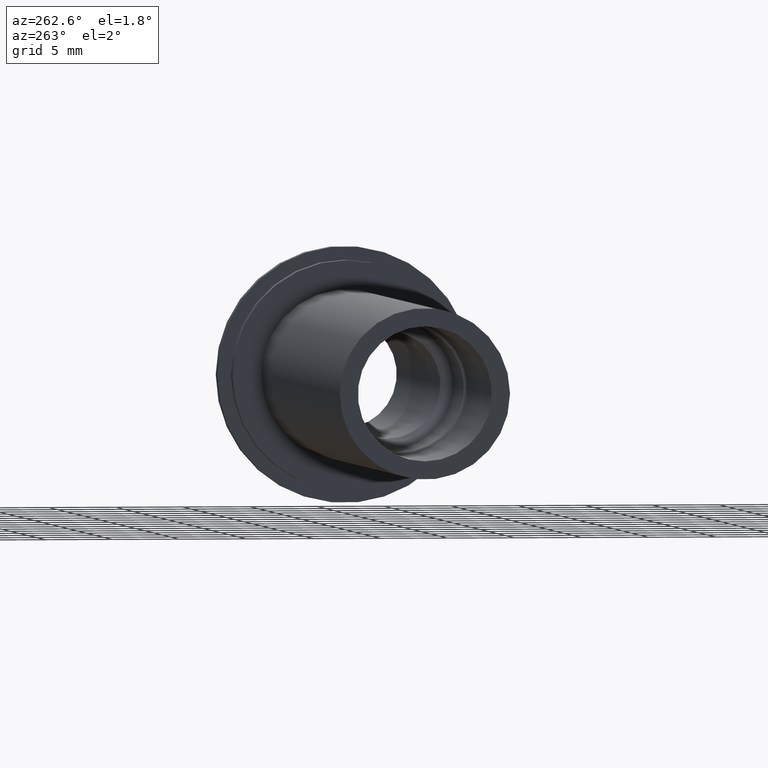
[diagram: clean part render]
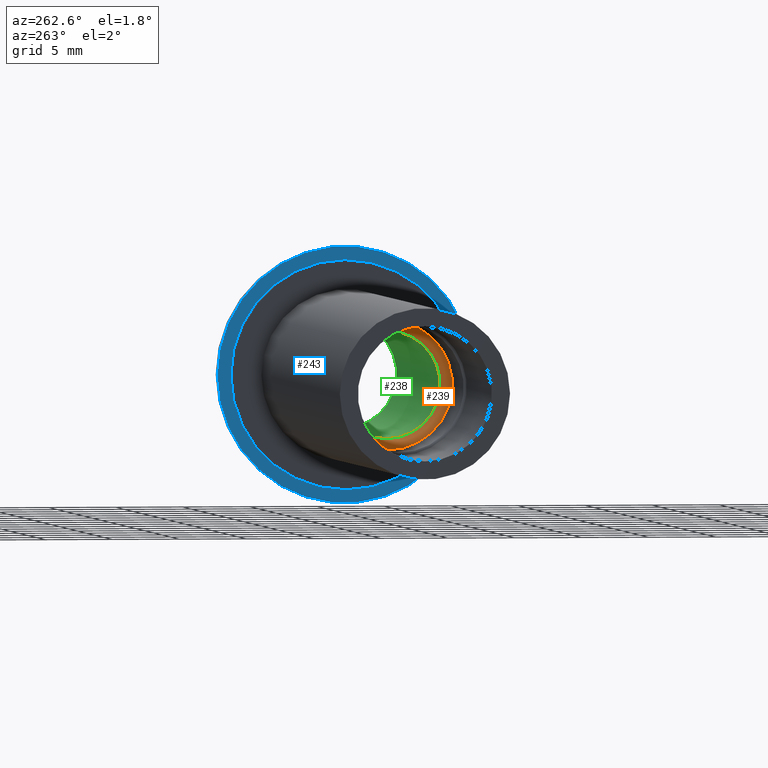
[diagram: same view with three faces highlighted in distinct colors, each labeled with its STEP entity id]
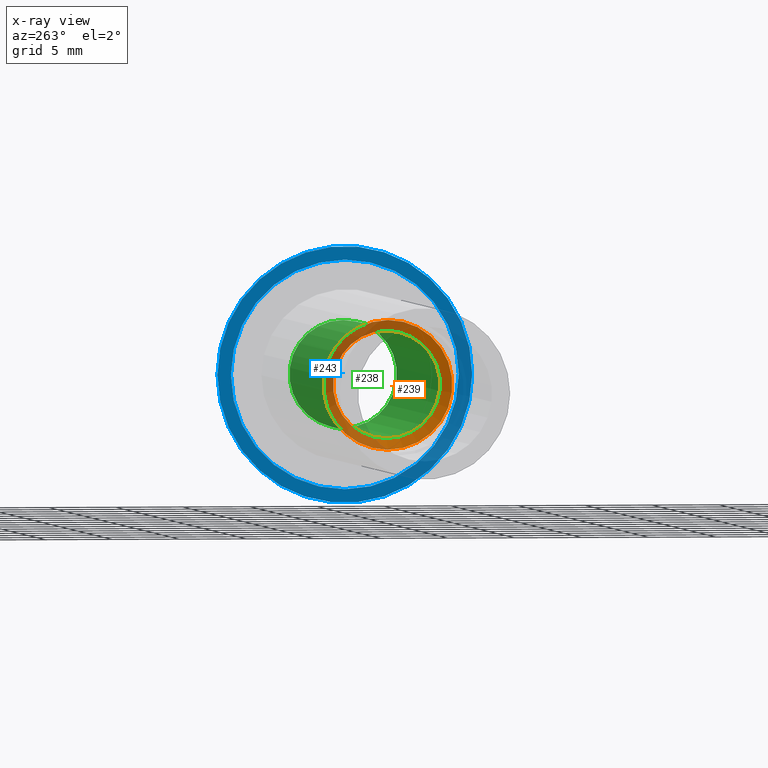
[diagram: x-ray of the same camera — body ghosted, the three highlighted faces saturated]
A machine part, auxiliary view with three faces highlighted in distinct colors.
The next image is the same camera in x-ray (body ghosted, the three faces saturated) — at least one of them is partly hidden behind the body in this view.
Their STEP definitions:

[orange] entity #239 — the highlighted conical surface has half-angle 45 deg.
#94=CONICAL_SURFACE('',#277,2.4,0.785398163397448);
#97=FACE_OUTER_BOUND('',#109,.T.);
#109=EDGE_LOOP('',(#195,#196,#197,#198,#199));
#125=LINE('',#418,#133);
#133=VECTOR('',#329,2.4);
#141=CIRCLE('',#275,4.);
#142=CIRCLE('',#276,4.);
#143=CIRCLE('',#278,4.8);
#157=VERTEX_POINT('',#410);
#158=VERTEX_POINT('',#412);
#159=VERTEX_POINT('',#416);
#171=EDGE_CURVE('',#158,#157,#141,.T.);
#172=EDGE_CURVE('',#157,#158,#142,.T.);
#173=EDGE_CURVE('',#159,#159,#143,.T.);
#174=EDGE_CURVE('',#159,#158,#125,.T.);
#195=ORIENTED_EDGE('',*,*,#173,.T.);
#196=ORIENTED_EDGE('',*,*,#174,.T.);
#197=ORIENTED_EDGE('',*,*,#171,.T.);
#198=ORIENTED_EDGE('',*,*,#172,.T.);
#199=ORIENTED_EDGE('',*,*,#174,.F.);
#239=ADVANCED_FACE('',(#97),#94,.F.);
#275=AXIS2_PLACEMENT_3D('',#413,#321,#322);
#276=AXIS2_PLACEMENT_3D('',#414,#323,#324);
#277=AXIS2_PLACEMENT_3D('',#415,#325,#326);
#278=AXIS2_PLACEMENT_3D('',#417,#327,#328);
#321=DIRECTION('center_axis',(1.,0.,0.));
#322=DIRECTION('ref_axis',(0.,0.,-1.));
#323=DIRECTION('center_axis',(1.,0.,0.));
#324=DIRECTION('ref_axis',(0.,0.,-1.));
#325=DIRECTION('center_axis',(-1.,0.,0.));
#326=DIRECTION('ref_axis',(0.,0.,1.));
#327=DIRECTION('center_axis',(-1.,0.,0.));
#328=DIRECTION('ref_axis',(0.,0.,1.));
#329=DIRECTION('',(0.707106781186548,8.65956056235493E-17,0.707106781186547));
#410=CARTESIAN_POINT('',(-25.,-4.89858719658941E-16,4.));
#412=CARTESIAN_POINT('',(-25.,-4.89858719658941E-16,-4.));
#413=CARTESIAN_POINT('Origin',(-25.,0.,0.));
#414=CARTESIAN_POINT('Origin',(-25.,0.,0.));
#415=CARTESIAN_POINT('Origin',(-23.4,0.,0.));
#416=CARTESIAN_POINT('',(-25.8,-5.8783046359073E-16,-4.8));
#417=CARTESIAN_POINT('Origin',(-25.8,0.,0.));
#418=CARTESIAN_POINT('',(-23.4,-2.93915231795365E-16,-2.4));

[blue] entity #243 — the highlighted planar face has unit normal (-1, 0, 0).
#86=FACE_BOUND('',#114,.T.);
#90=PLANE('',#285);
#101=FACE_OUTER_BOUND('',#113,.T.);
#113=EDGE_LOOP('',(#212));
#114=EDGE_LOOP('',(#213));
#147=CIRCLE('',#286,9.5);
#148=CIRCLE('',#287,8.5);
#163=VERTEX_POINT('',#432);
#164=VERTEX_POINT('',#434);
#181=EDGE_CURVE('',#163,#163,#147,.T.);
#182=EDGE_CURVE('',#164,#164,#148,.T.);
#212=ORIENTED_EDGE('',*,*,#181,.F.);
#213=ORIENTED_EDGE('',*,*,#182,.T.);
#243=ADVANCED_FACE('',(#101,#86),#90,.T.);
#285=AXIS2_PLACEMENT_3D('',#431,#345,#346);
#286=AXIS2_PLACEMENT_3D('',#433,#347,#348);
#287=AXIS2_PLACEMENT_3D('',#435,#349,#350);
#345=DIRECTION('center_axis',(-1.,0.,0.));
#346=DIRECTION('ref_axis',(0.,0.,1.));
#347=DIRECTION('center_axis',(1.,0.,0.));
#348=DIRECTION('ref_axis',(0.,0.,-1.));
#349=DIRECTION('center_axis',(1.,0.,0.));
#350=DIRECTION('ref_axis',(0.,0.,-1.));
#431=CARTESIAN_POINT('Origin',(-0.999999999999994,9.5,0.));
#432=CARTESIAN_POINT('',(-0.999999999999994,-9.5,-1.16341445918999E-15));
#433=CARTESIAN_POINT('Origin',(-0.999999999999994,0.,0.));
#434=CARTESIAN_POINT('',(-0.999999999999994,-8.5,-1.04094977927525E-15));
#435=CARTESIAN_POINT('Origin',(-0.999999999999994,0.,0.));

[green] entity #238 — the highlighted cylindrical surface (bore or boss wall) has radius 4 mm, axis along (1, 0, 0).
#96=FACE_OUTER_BOUND('',#108,.T.);
#108=EDGE_LOOP('',(#190,#191,#192,#193,#194));
#124=LINE('',#411,#132);
#132=VECTOR('',#320,4.);
#140=CIRCLE('',#274,4.);
#141=CIRCLE('',#275,4.);
#142=CIRCLE('',#276,4.);
#156=VERTEX_POINT('',#408);
#157=VERTEX_POINT('',#410);
#158=VERTEX_POINT('',#412);
#169=EDGE_CURVE('',#156,#156,#140,.T.);
#170=EDGE_CURVE('',#156,#157,#124,.T.);
#171=EDGE_CURVE('',#158,#157,#141,.T.);
#172=EDGE_CURVE('',#157,#158,#142,.T.);
#190=ORIENTED_EDGE('',*,*,#169,.F.);
#191=ORIENTED_EDGE('',*,*,#170,.T.);
#192=ORIENTED_EDGE('',*,*,#171,.F.);
#193=ORIENTED_EDGE('',*,*,#172,.F.);
#194=ORIENTED_EDGE('',*,*,#170,.F.);
#232=CYLINDRICAL_SURFACE('',#273,4.);
#238=ADVANCED_FACE('',(#96),#232,.F.);
#273=AXIS2_PLACEMENT_3D('',#407,#316,#317);
#274=AXIS2_PLACEMENT_3D('',#409,#318,#319);
#275=AXIS2_PLACEMENT_3D('',#413,#321,#322);
#276=AXIS2_PLACEMENT_3D('',#414,#323,#324);
#316=DIRECTION('center_axis',(1.,0.,0.));
#317=DIRECTION('ref_axis',(0.,0.,-1.));
#318=DIRECTION('center_axis',(-1.,0.,0.));
#319=DIRECTION('ref_axis',(0.,0.,-1.));
#320=DIRECTION('',(-1.,0.,0.));
#321=DIRECTION('center_axis',(1.,0.,0.));
#322=DIRECTION('ref_axis',(0.,0.,-1.));
#323=DIRECTION('center_axis',(1.,0.,0.));
#324=DIRECTION('ref_axis',(0.,0.,-1.));
#407=CARTESIAN_POINT('Origin',(-54.1387107345567,0.,0.));
#408=CARTESIAN_POINT('',(1.77635683940025E-14,-4.89858719658941E-16,4.));
#409=CARTESIAN_POINT('Origin',(1.77635683940025E-14,0.,0.));
#410=CARTESIAN_POINT('',(-25.,-4.89858719658941E-16,4.));
#411=CARTESIAN_POINT('',(-54.1387107345567,-4.89858719658941E-16,4.));
#412=CARTESIAN_POINT('',(-25.,-4.89858719658941E-16,-4.));
#413=CARTESIAN_POINT('Origin',(-25.,0.,0.));
#414=CARTESIAN_POINT('Origin',(-25.,0.,0.));